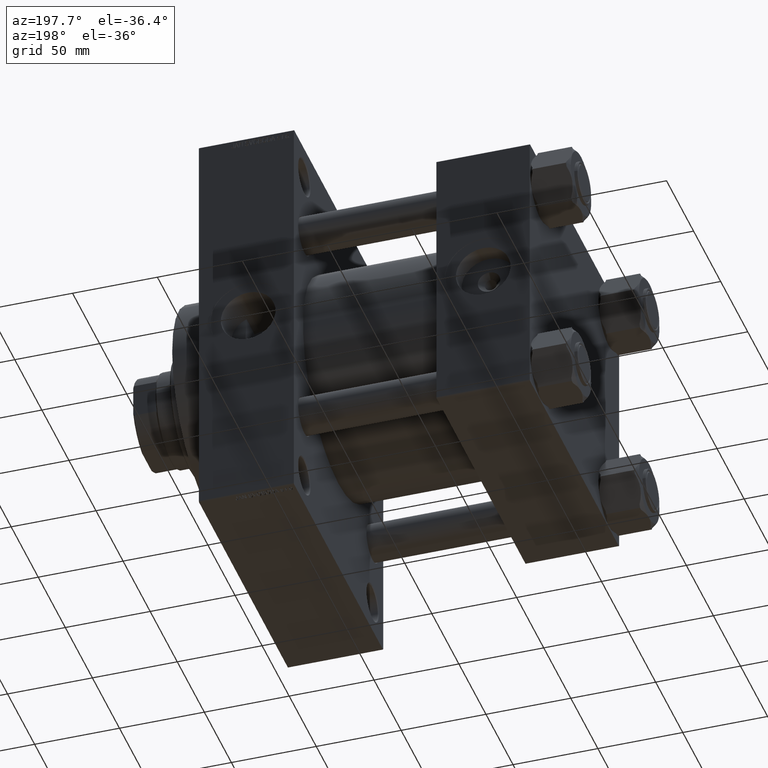
[diagram: clean part render]
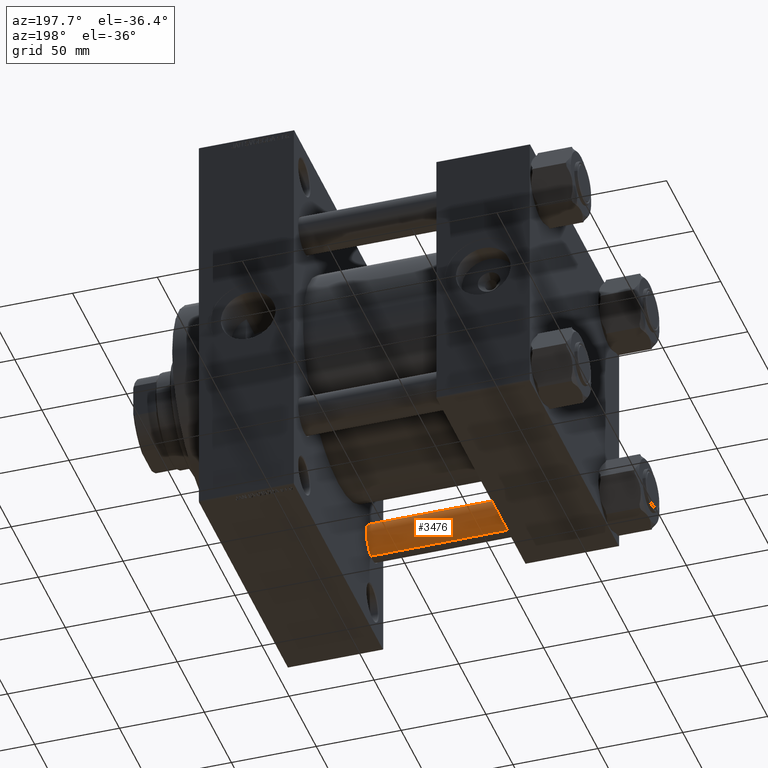
[diagram: same view with one face highlighted and labeled with its STEP entity id]
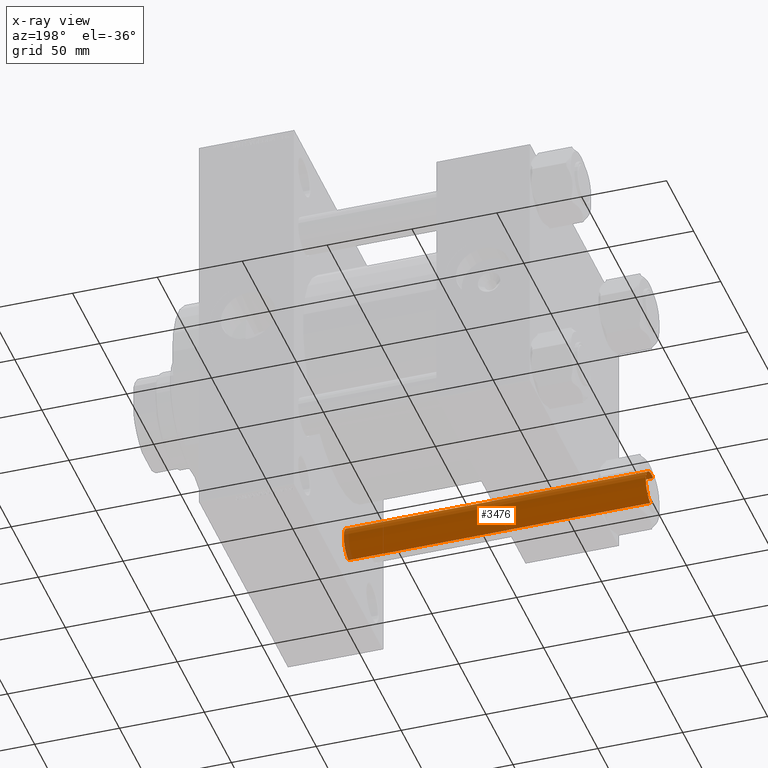
[diagram: x-ray of the same camera — body ghosted, the highlighted face saturated]
A machine part, auxiliary view. The second image highlights one B-rep face of the part: STEP entity #3476.
The next image is the same camera in x-ray: the body ghosted, the highlighted face saturated — about 2% of this face is hidden behind the body in this view.
In plain terms, the highlighted cylindrical surface (edge-blend (fillet) strip) has radius 11 mm, axis along (-1, 0, 0).
Its self-contained STEP definition (entity closure, byte-faithful):
#800 = EDGE_CURVE ( 'NONE', #41710, #46269, #33056, .T. ) ;
#2195 = AXIS2_PLACEMENT_3D ( 'NONE', #2934, #25441, #21211 ) ;
#2934 = CARTESIAN_POINT ( 'NONE',  ( 0.000000000000000000, 0.000000000000000000, 179.0000000000000000 ) ) ;
#3476 = ADVANCED_FACE ( 'NONE', ( #14183 ), #29189, .T. ) ;
#4562 = CARTESIAN_POINT ( 'NONE',  ( 11.00000000000000000, 1.347111479062088207E-15, 179.0000000000000000 ) ) ;
#5215 = VECTOR ( 'NONE', #9927, 1000.000000000000000 ) ;
#6128 = ORIENTED_EDGE ( 'NONE', *, *, #800, .T. ) ;
#6692 = CARTESIAN_POINT ( 'NONE',  ( 11.00000000000000000, 1.347111479062088207E-15, 0.5000000000001392220 ) ) ;
#9927 = DIRECTION ( 'NONE',  ( -0.000000000000000000, -0.000000000000000000, -1.000000000000000000 ) ) ;
#10452 = DIRECTION ( 'NONE',  ( 1.000000000000000000, 0.000000000000000000, 0.000000000000000000 ) ) ;
#11489 = AXIS2_PLACEMENT_3D ( 'NONE', #11639, #49435, #18914 ) ;
#11639 = CARTESIAN_POINT ( 'NONE',  ( 0.000000000000000000, 0.000000000000000000, 0.5000000000001392220 ) ) ;
#11946 = CARTESIAN_POINT ( 'NONE',  ( 11.00000000000000000, 1.347111479062088207E-15, 178.5000000000000853 ) ) ;
#14183 = FACE_OUTER_BOUND ( 'NONE', #18951, .T. ) ;
#14832 = EDGE_CURVE ( 'NONE', #16830, #36721, #18534, .T. ) ;
#15823 = ORIENTED_EDGE ( 'NONE', *, *, #44192, .F. ) ;
#16830 = VERTEX_POINT ( 'NONE', #11946 ) ;
#17433 = LINE ( 'NONE', #47967, #5215 ) ;
#18422 = AXIS2_PLACEMENT_3D ( 'NONE', #19091, #28731, #10452 ) ;
#18534 = CIRCLE ( 'NONE', #18422, 11.00000000000000000 ) ;
#18914 = DIRECTION ( 'NONE',  ( 1.000000000000000000, 0.000000000000000000, 0.000000000000000000 ) ) ;
#18951 = EDGE_LOOP ( 'NONE', ( #15823, #28752, #24125, #6128 ) ) ;
#19091 = CARTESIAN_POINT ( 'NONE',  ( 0.000000000000000000, 0.000000000000000000, 178.5000000000000853 ) ) ;
#21211 = DIRECTION ( 'NONE',  ( -1.000000000000000000, 0.000000000000000000, 0.000000000000000000 ) ) ;
#24125 = ORIENTED_EDGE ( 'NONE', *, *, #28541, .T. ) ;
#25441 = DIRECTION ( 'NONE',  ( -0.000000000000000000, -0.000000000000000000, -1.000000000000000000 ) ) ;
#28541 = EDGE_CURVE ( 'NONE', #36721, #41710, #17433, .T. ) ;
#28731 = DIRECTION ( 'NONE',  ( 0.000000000000000000, 0.000000000000000000, -1.000000000000000000 ) ) ;
#28752 = ORIENTED_EDGE ( 'NONE', *, *, #14832, .T. ) ;
#29189 = CYLINDRICAL_SURFACE ( 'NONE', #2195, 11.00000000000000000 ) ;
#30821 = DIRECTION ( 'NONE',  ( -0.000000000000000000, -0.000000000000000000, -1.000000000000000000 ) ) ;
#31060 = LINE ( 'NONE', #4562, #41803 ) ;
#33056 = CIRCLE ( 'NONE', #11489, 11.00000000000000000 ) ;
#36721 = VERTEX_POINT ( 'NONE', #43619 ) ;
#38983 = CARTESIAN_POINT ( 'NONE',  ( -11.00000000000000000, 0.000000000000000000, 0.5000000000001392220 ) ) ;
#41710 = VERTEX_POINT ( 'NONE', #38983 ) ;
#41803 = VECTOR ( 'NONE', #30821, 1000.000000000000000 ) ;
#43619 = CARTESIAN_POINT ( 'NONE',  ( -11.00000000000000000, 0.000000000000000000, 178.5000000000000853 ) ) ;
#44192 = EDGE_CURVE ( 'NONE', #16830, #46269, #31060, .T. ) ;
#46269 = VERTEX_POINT ( 'NONE', #6692 ) ;
#47967 = CARTESIAN_POINT ( 'NONE',  ( -11.00000000000000000, 0.000000000000000000, 179.0000000000000000 ) ) ;
#49435 = DIRECTION ( 'NONE',  ( -0.000000000000000000, -0.000000000000000000, 1.000000000000000000 ) ) ;